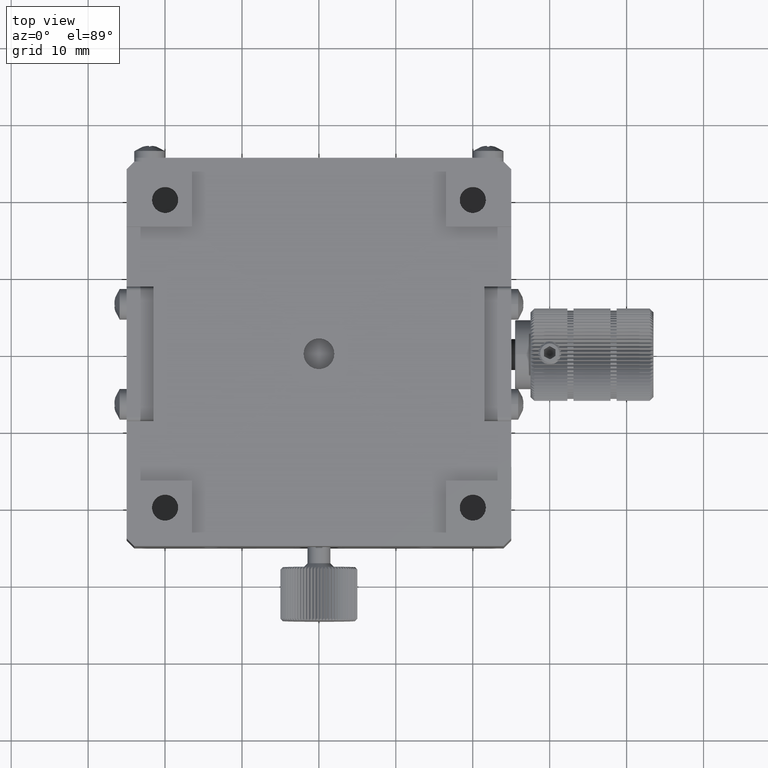
[diagram: clean part render]
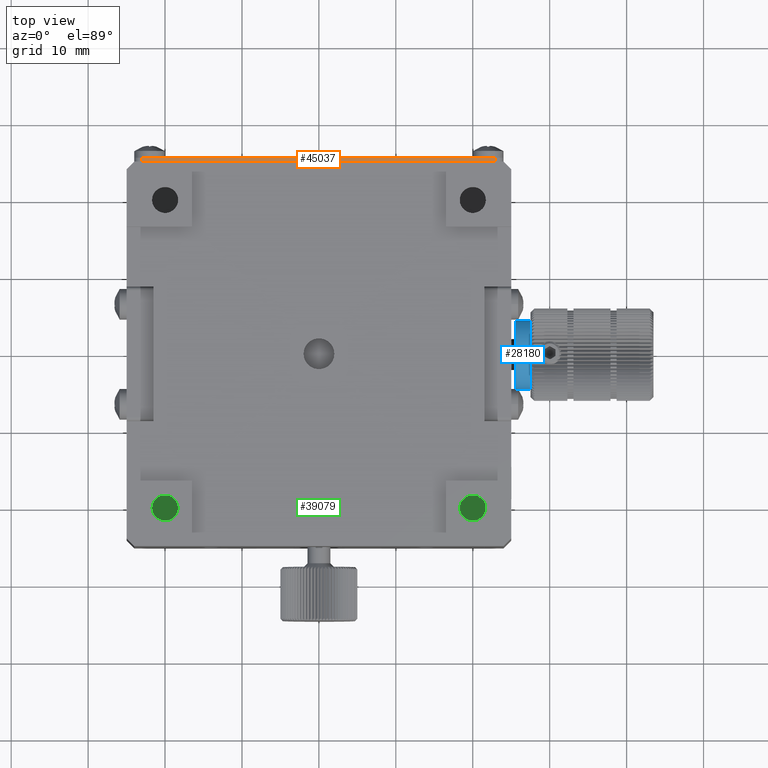
[diagram: same view with three faces highlighted in distinct colors, each labeled with its STEP entity id]
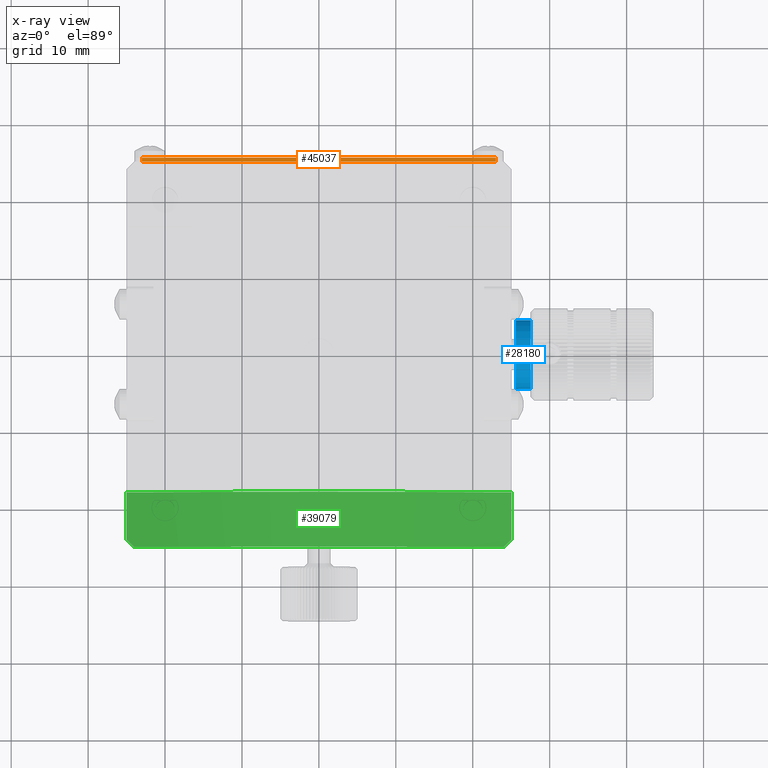
[diagram: x-ray of the same camera — body ghosted, the three highlighted faces saturated]
A machine part, top view with three faces highlighted in distinct colors.
The next image is the same camera in x-ray (body ghosted, the three faces saturated) — at least one of them is partly hidden behind the body in this view.
Their STEP definitions:

[orange] entity #45037 — the highlighted planar face has unit normal (0, 0, -1).
#1695 = EDGE_CURVE ( 'NONE', #56304, #36282, #51856, .T. ) ;
#5483 = EDGE_LOOP ( 'NONE', ( #46939, #12879, #16615, #8919 ) ) ;
#7097 = VECTOR ( 'NONE', #64529, 1000.000000000000000 ) ;
#8919 = ORIENTED_EDGE ( 'NONE', *, *, #38838, .F. ) ;
#9021 = CARTESIAN_POINT ( 'NONE',  ( -23.99999999999998934, 25.50000000000000355, 67.50000000000000000 ) ) ;
#10031 = DIRECTION ( 'NONE',  ( 0.000000000000000000, 0.000000000000000000, -1.000000000000000000 ) ) ;
#11242 = DIRECTION ( 'NONE',  ( 1.000000000000000000, 0.000000000000000000, -0.000000000000000000 ) ) ;
#12729 = CARTESIAN_POINT ( 'NONE',  ( -22.99999999999998934, 25.50000000000000355, 67.50000000000000000 ) ) ;
#12879 = ORIENTED_EDGE ( 'NONE', *, *, #36655, .T. ) ;
#13537 = VECTOR ( 'NONE', #11242, 1000.000000000000000 ) ;
#14645 = CARTESIAN_POINT ( 'NONE',  ( 23.00000000000001066, 25.50000000000000355, 67.50000000000000000 ) ) ;
#16615 = ORIENTED_EDGE ( 'NONE', *, *, #1695, .F. ) ;
#20767 = LINE ( 'NONE', #22133, #7097 ) ;
#21227 = DIRECTION ( 'NONE',  ( -0.000000000000000000, -1.000000000000000000, -0.000000000000000000 ) ) ;
#22133 = CARTESIAN_POINT ( 'NONE',  ( -23.99999999999998934, 25.50000000000000355, 67.50000000000000000 ) ) ;
#23772 = CARTESIAN_POINT ( 'NONE',  ( -22.99999999999998934, 25.50000000000000355, 67.50000000000000000 ) ) ;
#24516 = CARTESIAN_POINT ( 'NONE',  ( 23.00000000000000711, 25.50000000000000355, 67.50000000000000000 ) ) ;
#30604 = VECTOR ( 'NONE', #65825, 1000.000000000000000 ) ;
#31078 = AXIS2_PLACEMENT_3D ( 'NONE', #9021, #10031, #52485 ) ;
#31291 = PLANE ( 'NONE',  #31078 ) ;
#32317 = VECTOR ( 'NONE', #21227, 1000.000000000000000 ) ;
#32434 = CARTESIAN_POINT ( 'NONE',  ( 23.00000000000000711, 25.00000000000000000, 67.50000000000000000 ) ) ;
#32975 = EDGE_CURVE ( 'NONE', #62377, #51258, #60960, .T. ) ;
#36282 = VERTEX_POINT ( 'NONE', #32434 ) ;
#36655 = EDGE_CURVE ( 'NONE', #62377, #36282, #37709, .T. ) ;
#37709 = LINE ( 'NONE', #58884, #13537 ) ;
#38838 = EDGE_CURVE ( 'NONE', #51258, #56304, #20767, .T. ) ;
#45037 = ADVANCED_FACE ( 'NONE', ( #51805 ), #31291, .F. ) ;
#46939 = ORIENTED_EDGE ( 'NONE', *, *, #32975, .F. ) ;
#51258 = VERTEX_POINT ( 'NONE', #12729 ) ;
#51805 = FACE_OUTER_BOUND ( 'NONE', #5483, .T. ) ;
#51856 = LINE ( 'NONE', #14645, #32317 ) ;
#52485 = DIRECTION ( 'NONE',  ( -1.000000000000000000, 0.000000000000000000, -0.000000000000000000 ) ) ;
#56304 = VERTEX_POINT ( 'NONE', #24516 ) ;
#56864 = CARTESIAN_POINT ( 'NONE',  ( -22.99999999999998934, 25.00000000000000000, 67.50000000000000000 ) ) ;
#58884 = CARTESIAN_POINT ( 'NONE',  ( 0.000000000000000000, 25.00000000000000000, 67.50000000000000000 ) ) ;
#60960 = LINE ( 'NONE', #23772, #30604 ) ;
#62377 = VERTEX_POINT ( 'NONE', #56864 ) ;
#64529 = DIRECTION ( 'NONE',  ( 1.000000000000000000, -0.000000000000000000, 0.000000000000000000 ) ) ;
#65825 = DIRECTION ( 'NONE',  ( 0.000000000000000000, 1.000000000000000000, 0.000000000000000000 ) ) ;

[blue] entity #28180 — the highlighted cylindrical surface (bore or boss wall) has radius 4.5 mm, axis along (-1, -0, 0).
#4849 = DIRECTION ( 'NONE',  ( 1.000000000000000000, 1.017949417668749241E-16, -5.098831021283701398E-16 ) ) ;
#4950 = EDGE_LOOP ( 'NONE', ( #37455 ) ) ;
#5113 = CARTESIAN_POINT ( 'NONE',  ( 27.49999999999994316, 3.649983975839078482E-15, 65.99999999999997158 ) ) ;
#5823 = ORIENTED_EDGE ( 'NONE', *, *, #55249, .T. ) ;
#6812 = CIRCLE ( 'NONE', #50185, 4.500000000000003553 ) ;
#7735 = CARTESIAN_POINT ( 'NONE',  ( 27.49999999999993960, 3.649983975839078482E-15, 61.49999999999997158 ) ) ;
#10063 = CARTESIAN_POINT ( 'NONE',  ( 25.59999999999993747, 3.456573586482015848E-15, 61.49999999999997158 ) ) ;
#22388 = DIRECTION ( 'NONE',  ( 7.709882115452470278E-16, 0.000000000000000000, 1.000000000000000000 ) ) ;
#24040 = AXIS2_PLACEMENT_3D ( 'NONE', #56699, #46267, #67447 ) ;
#24383 = CYLINDRICAL_SURFACE ( 'NONE', #24040, 4.500000000000003553 ) ;
#25348 = CARTESIAN_POINT ( 'NONE',  ( 25.59999999999994102, 3.456573586482015848E-15, 65.99999999999997158 ) ) ;
#28180 = ADVANCED_FACE ( 'NONE', ( #33517, #66763 ), #24383, .T. ) ;
#28995 = DIRECTION ( 'NONE',  ( -1.000000000000000000, -1.017949417668749241E-16, 5.098831021283701398E-16 ) ) ;
#29813 = CIRCLE ( 'NONE', #36458, 4.500000000000003553 ) ;
#33517 = FACE_OUTER_BOUND ( 'NONE', #4950, .T. ) ;
#34553 = EDGE_CURVE ( 'NONE', #41326, #41326, #6812, .T. ) ;
#36458 = AXIS2_PLACEMENT_3D ( 'NONE', #7735, #28995, #22388 ) ;
#37455 = ORIENTED_EDGE ( 'NONE', *, *, #34553, .T. ) ;
#41326 = VERTEX_POINT ( 'NONE', #25348 ) ;
#46267 = DIRECTION ( 'NONE',  ( -1.000000000000000000, -1.017949417668749241E-16, 5.098831021283701398E-16 ) ) ;
#50185 = AXIS2_PLACEMENT_3D ( 'NONE', #10063, #4849, #62611 ) ;
#52789 = VERTEX_POINT ( 'NONE', #5113 ) ;
#55249 = EDGE_CURVE ( 'NONE', #52789, #52789, #29813, .T. ) ;
#56699 = CARTESIAN_POINT ( 'NONE',  ( 25.49999999999994316, 3.446394092305328881E-15, 61.49999999999997158 ) ) ;
#62013 = EDGE_LOOP ( 'NONE', ( #5823 ) ) ;
#62611 = DIRECTION ( 'NONE',  ( 7.709882115452470278E-16, 0.000000000000000000, 1.000000000000000000 ) ) ;
#66763 = FACE_OUTER_BOUND ( 'NONE', #62013, .T. ) ;
#67447 = DIRECTION ( 'NONE',  ( 7.709882115452470278E-16, 0.000000000000000000, 1.000000000000000000 ) ) ;

[green] entity #39079 — the highlighted cylindrical surface (partial cylindrical patch) has radius 63 mm, axis along (0, 1, 0).
#1004 = CARTESIAN_POINT ( 'NONE',  ( -24.66788300197081796, -24.33211699802925310, 57.97091051122421845 ) ) ;
#2295 = DIRECTION ( 'NONE',  ( -0.000000000000000000, -1.000000000000000000, -0.000000000000000000 ) ) ;
#2894 = ORIENTED_EDGE ( 'NONE', *, *, #59126, .T. ) ;
#3779 = EDGE_CURVE ( 'NONE', #9933, #59745, #33687, .T. ) ;
#5888 = CARTESIAN_POINT ( 'NONE',  ( -24.00000000000007105, -25.00000000000000000, 58.24946351684276635 ) ) ;
#7106 = EDGE_CURVE ( 'NONE', #57634, #24507, #49421, .T. ) ;
#7555 = EDGE_CURVE ( 'NONE', #36379, #59745, #42824, .T. ) ;
#8009 = EDGE_CURVE ( 'NONE', #57634, #31830, #32101, .T. ) ;
#9454 = EDGE_LOOP ( 'NONE', ( #22973, #67847, #14473, #28752, #37514, #2894 ) ) ;
#9933 = VERTEX_POINT ( 'NONE', #42038 ) ;
#14473 = ORIENTED_EDGE ( 'NONE', *, *, #21721, .F. ) ;
#19654 = DIRECTION ( 'NONE',  ( 0.000000000000000000, 1.000000000000000000, 0.000000000000000000 ) ) ;
#20919 = CARTESIAN_POINT ( 'NONE',  ( 24.99999999999993605, -23.99999999999999645, 57.82732917920385773 ) ) ;
#21586 = CARTESIAN_POINT ( 'NONE',  ( 24.33454142244877616, -24.66545857755117410, 58.11162543810328884 ) ) ;
#21721 = EDGE_CURVE ( 'NONE', #9933, #24507, #39932, .T. ) ;
#21723 = VECTOR ( 'NONE', #32439, 1000.000000000000000 ) ;
#22973 = ORIENTED_EDGE ( 'NONE', *, *, #8009, .F. ) ;
#24507 = VERTEX_POINT ( 'NONE', #40584 ) ;
#24634 = CARTESIAN_POINT ( 'NONE',  ( -25.00000000000006750, 25.00000000000000000, 57.82732917920381510 ) ) ;
#26087 = AXIS2_PLACEMENT_3D ( 'NONE', #57203, #19654, #40537 ) ;
#28752 = ORIENTED_EDGE ( 'NONE', *, *, #3779, .T. ) ;
#31830 = VERTEX_POINT ( 'NONE', #41755 ) ;
#32101 = LINE ( 'NONE', #47048, #21723 ) ;
#32439 = DIRECTION ( 'NONE',  ( 0.000000000000000000, -1.000000000000000000, -0.000000000000000000 ) ) ;
#33687 =( BOUNDED_CURVE ( )  B_SPLINE_CURVE ( 3, ( #37254, #1004, #42459, #5888 ),
 .UNSPECIFIED., .F., .F. ) 
 B_SPLINE_CURVE_WITH_KNOTS ( ( 4, 4 ),
 ( 1.162740649493618106, 1.179970196219454870 ),
 .UNSPECIFIED. ) 
 CURVE ( )  GEOMETRIC_REPRESENTATION_ITEM ( )  RATIONAL_B_SPLINE_CURVE ( ( 1.000000000000000000, 0.9999752620462949437, 0.9999752620462949437, 1.000000000000000000 ) ) 
 REPRESENTATION_ITEM ( '' )  );
#36379 = VERTEX_POINT ( 'NONE', #44828 ) ;
#37254 = CARTESIAN_POINT ( 'NONE',  ( -25.00000000000006750, -23.99999999999999289, 57.82732917920381510 ) ) ;
#37514 = ORIENTED_EDGE ( 'NONE', *, *, #7555, .F. ) ;
#39079 = ADVANCED_FACE ( 'NONE', ( #46075 ), #56857, .T. ) ;
#39127 = DIRECTION ( 'NONE',  ( -0.000000000000000000, -1.000000000000000000, -0.000000000000000000 ) ) ;
#39559 = CARTESIAN_POINT ( 'NONE',  ( 0.000000000000000000, -17.84999999999999787, 0.000000000000000000 ) ) ;
#39932 = LINE ( 'NONE', #24634, #47966 ) ;
#40537 = DIRECTION ( 'NONE',  ( 0.000000000000000000, 0.000000000000000000, 1.000000000000000000 ) ) ;
#40584 = CARTESIAN_POINT ( 'NONE',  ( -25.00000000000006750, -17.84999999999999787, 57.82732917920381510 ) ) ;
#40633 = DIRECTION ( 'NONE',  ( 0.000000000000000000, 1.000000000000000000, -0.000000000000000000 ) ) ;
#41755 = CARTESIAN_POINT ( 'NONE',  ( 24.99999999999993605, -23.99999999999999645, 57.82732917920385773 ) ) ;
#42038 = CARTESIAN_POINT ( 'NONE',  ( -25.00000000000006750, -23.99999999999999289, 57.82732917920381510 ) ) ;
#42459 = CARTESIAN_POINT ( 'NONE',  ( -24.33454142244891827, -24.66545857755115279, 58.11162543810321779 ) ) ;
#42824 = CIRCLE ( 'NONE', #51653, 63.00000000000000000 ) ;
#44828 = CARTESIAN_POINT ( 'NONE',  ( 23.99999999999994671, -25.00000000000000000, 58.24946351684280899 ) ) ;
#46075 = FACE_OUTER_BOUND ( 'NONE', #9454, .T. ) ;
#47048 = CARTESIAN_POINT ( 'NONE',  ( 24.99999999999993605, 25.00000000000000000, 57.82732917920385773 ) ) ;
#47966 = VECTOR ( 'NONE', #40633, 1000.000000000000000 ) ;
#49421 = CIRCLE ( 'NONE', #56075, 63.00000000000000000 ) ;
#49551 = CARTESIAN_POINT ( 'NONE',  ( 0.000000000000000000, -25.00000000000000000, 0.000000000000000000 ) ) ;
#51005 = DIRECTION ( 'NONE',  ( 0.000000000000000000, 0.000000000000000000, 1.000000000000000000 ) ) ;
#51653 = AXIS2_PLACEMENT_3D ( 'NONE', #49551, #39127, #60315 ) ;
#56075 = AXIS2_PLACEMENT_3D ( 'NONE', #39559, #2295, #51005 ) ;
#56857 = CYLINDRICAL_SURFACE ( 'NONE', #26087, 63.00000000000000000 ) ;
#57203 = CARTESIAN_POINT ( 'NONE',  ( 0.000000000000000000, 0.000000000000000000, 0.000000000000000000 ) ) ;
#57634 = VERTEX_POINT ( 'NONE', #67250 ) ;
#57768 = CARTESIAN_POINT ( 'NONE',  ( 23.99999999999994671, -25.00000000000000000, 58.24946351684280899 ) ) ;
#59126 = EDGE_CURVE ( 'NONE', #36379, #31830, #63242, .T. ) ;
#59745 = VERTEX_POINT ( 'NONE', #64958 ) ;
#60315 = DIRECTION ( 'NONE',  ( 0.000000000000000000, 0.000000000000000000, 1.000000000000000000 ) ) ;
#63007 = CARTESIAN_POINT ( 'NONE',  ( 24.66788300197065809, -24.33211699802928507, 57.97091051122427530 ) ) ;
#63242 =( BOUNDED_CURVE ( )  B_SPLINE_CURVE ( 3, ( #57768, #21586, #63007, #20919 ),
 .UNSPECIFIED., .F., .F. ) 
 B_SPLINE_CURVE_WITH_KNOTS ( ( 4, 4 ),
 ( 5.103215110960131362, 5.120444657685967904 ),
 .UNSPECIFIED. ) 
 CURVE ( )  GEOMETRIC_REPRESENTATION_ITEM ( )  RATIONAL_B_SPLINE_CURVE ( ( 1.000000000000000000, 0.9999752620462949437, 0.9999752620462949437, 1.000000000000000000 ) ) 
 REPRESENTATION_ITEM ( '' )  );
#64958 = CARTESIAN_POINT ( 'NONE',  ( -24.00000000000007105, -25.00000000000000000, 58.24946351684276635 ) ) ;
#67250 = CARTESIAN_POINT ( 'NONE',  ( 24.99999999999993605, -17.84999999999999787, 57.82732917920386484 ) ) ;
#67847 = ORIENTED_EDGE ( 'NONE', *, *, #7106, .T. ) ;